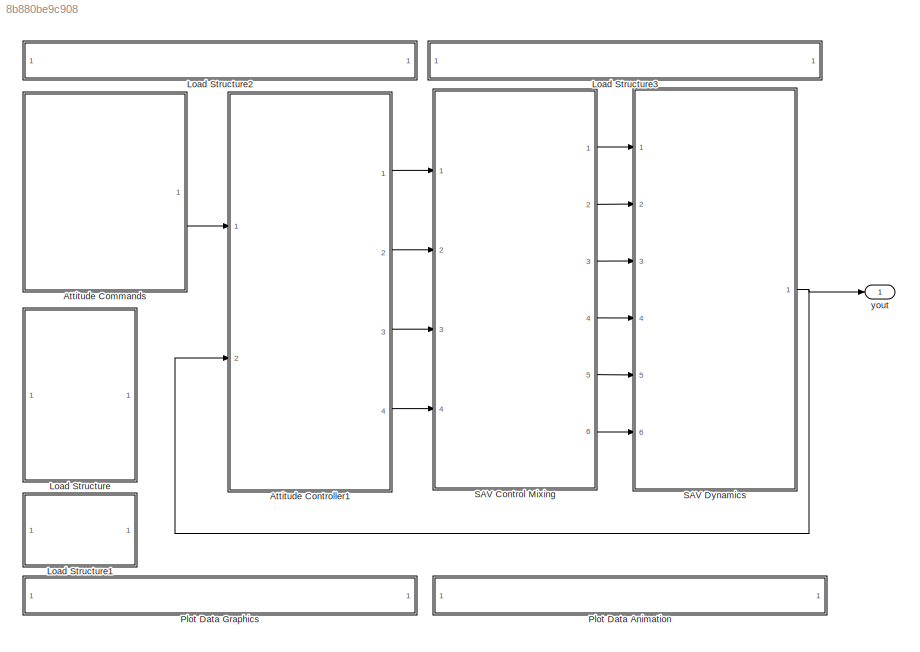
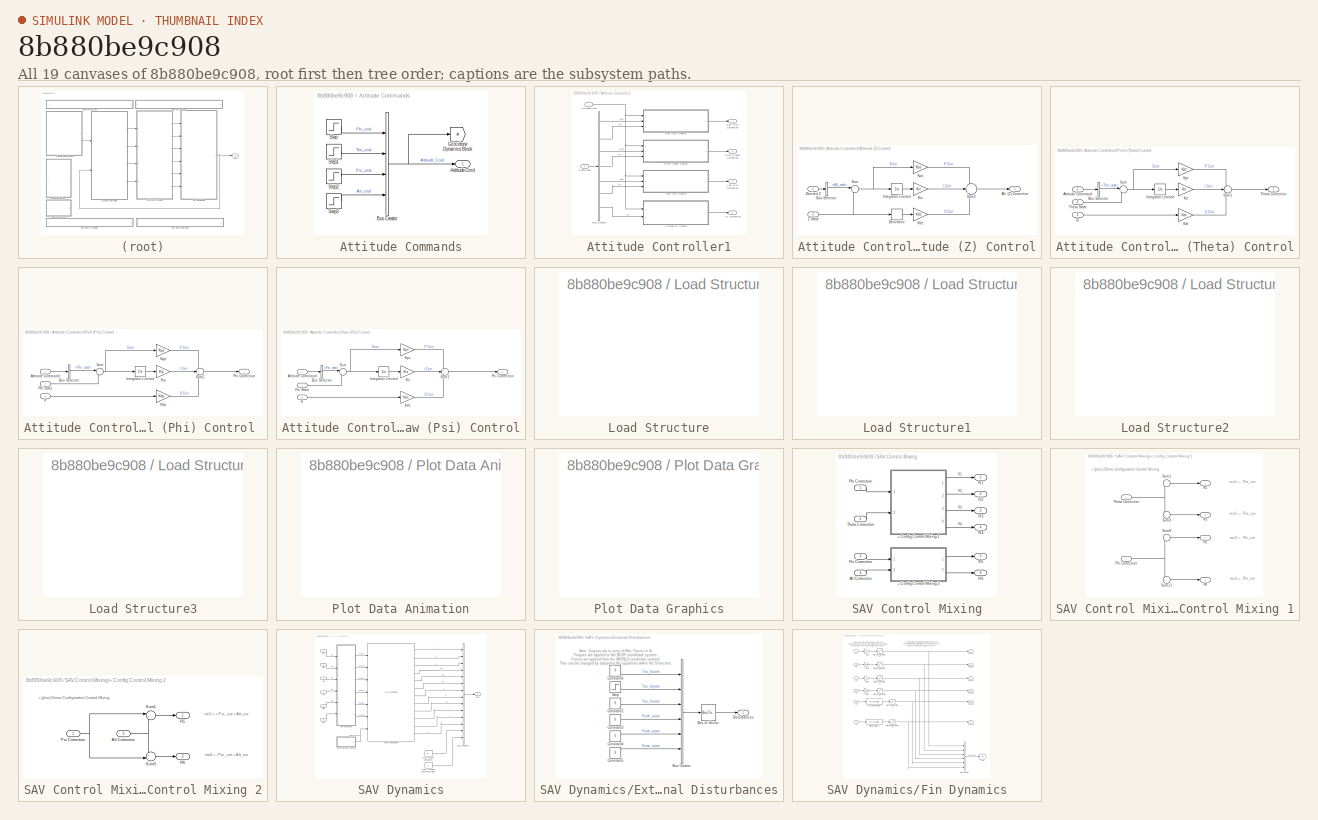
[diagram: thumbnail index - all 19 canvases of the model, root first then tree order]
MODEL slx_8b880be9c908
KIND model
WORKSPACE source: MAT-file member
WORKSPACE MCOS: class17 (value not decoded)
BLOCK [SubSystem] Attitude Commands
  Ports = [0, 1]
  RequestExecContextInheritance = off
BLOCK [Outport] Attitude Commands/Attittude Cmd
  IconDisplay = Port number
BLOCK [BusCreator] Attitude Commands/Bus Creator
  DisplayOption = bar
  Ports = [4, 1]
BLOCK [Goto] Attitude Commands/Go to drone Dynamics Block
  TagVisibility = global
BLOCK [Step] Attitude Commands/Step
  After = 0
  SampleTime = 0
BLOCK [Step] Attitude Commands/Step1
  After = 20*pi/180
  SampleTime = 0
BLOCK [Step] Attitude Commands/Step2
  After = 0
  SampleTime = 0
BLOCK [Step] Attitude Commands/Step3
  After = 10
  Before = 10
  SampleTime = 0
  Time = 0
BLOCK [SubSystem] Attitude Controller1
  Ports = [2, 4]
  RequestExecContextInheritance = off
BLOCK [Outport] Attitude Controller1/Alt Correction
  IconDisplay = Port number
  Port = 4
BLOCK [SubSystem] Attitude Controller1/Altitude (Z) Control
  Ports = [2, 1]
  RequestExecContextInheritance = off
BLOCK [Outport] Attitude Controller1/Altitude (Z) Control/Alt. (Z) Correction
  IconDisplay = Port number
BLOCK [BusSelector] Attitude Controller1/Altitude (Z) Control/Bus Selector
  OutputSignals = Alt_cmd
  Ports = [1, 1]
BLOCK [Derivative] Attitude Controller1/Altitude (Z) Control/Derivative
BLOCK [Inport] Attitude Controller1/Altitude (Z) Control/Desired Z
  IconDisplay = Port number
BLOCK [Integrator] Attitude Controller1/Altitude (Z) Control/Integrator Limited
  LowerSaturationLimit = LSat
  Ports = [1, 1]
  UpperSaturationLimit = USat
BLOCK [Gain] Attitude Controller1/Altitude (Z) Control/Kdz
  Gain = Kdz
  OutDataTypeStr = Inherit: Inherit via internal rule
  ParamDataTypeStr = Inherit: Inherit via internal rule
  SaturateOnIntegerOverflow = off
BLOCK [Gain] Attitude Controller1/Altitude (Z) Control/Kiz
  Gain = Kiz
  OutDataTypeStr = Inherit: Inherit via internal rule
  ParamDataTypeStr = Inherit: Inherit via internal rule
  SaturateOnIntegerOverflow = off
BLOCK [Gain] Attitude Controller1/Altitude (Z) Control/Kpz
  Gain = Kpz
  OutDataTypeStr = Inherit: Inherit via internal rule
  ParamDataTypeStr = Inherit: Inherit via internal rule
  SaturateOnIntegerOverflow = off
BLOCK [Sum] Attitude Controller1/Altitude (Z) Control/Sum
  IconShape = round
  InputSameDT = off
  Inputs = |+-
  OutDataTypeStr = Inherit: Inherit via internal rule
  Ports = [2, 1]
  SaturateOnIntegerOverflow = off
BLOCK [Sum] Attitude Controller1/Altitude (Z) Control/Sum2
  IconShape = round
  InputSameDT = off
  Inputs = ++-
  OutDataTypeStr = Inherit: Inherit via internal rule
  Ports = [3, 1]
  SaturateOnIntegerOverflow = off
BLOCK [Inport] Attitude Controller1/Altitude (Z) Control/Z State
  IconDisplay = Port number
  Port = 2
BLOCK [Inport] Attitude Controller1/Attitude Cmd
  IconDisplay = Port number
BLOCK [BusSelector] Attitude Controller1/Bus Selector
  OutputSignals = Phi,P,The,Q,Psi,R,Z
  Ports = [1, 7]
BLOCK [SubSystem] Attitude Controller1/Pitch (Theta) Control
  Ports = [3, 1]
  RequestExecContextInheritance = off
BLOCK [Inport] Attitude Controller1/Pitch (Theta) Control/Attitude Command
  IconDisplay = Port number
BLOCK [BusSelector] Attitude Controller1/Pitch (Theta) Control/Bus Selector
  OutputSignals = The_cmd
  Ports = [1, 1]
BLOCK [Integrator] Attitude Controller1/Pitch (Theta) Control/Integrator Limited
  LowerSaturationLimit = LSat
  Ports = [1, 1]
  UpperSaturationLimit = USat
BLOCK [Gain] Attitude Controller1/Pitch (Theta) Control/Kdt
  Gain = Kdt
  OutDataTypeStr = Inherit: Inherit via internal rule
  ParamDataTypeStr = Inherit: Inherit via internal rule
  SaturateOnIntegerOverflow = off
BLOCK [Gain] Attitude Controller1/Pitch (Theta) Control/Kit
  Gain = Kit
  OutDataTypeStr = Inherit: Inherit via internal rule
  ParamDataTypeStr = Inherit: Inherit via internal rule
  SaturateOnIntegerOverflow = off
BLOCK [Gain] Attitude Controller1/Pitch (Theta) Control/Kpt
  Gain = Kpt
  OutDataTypeStr = Inherit: Inherit via internal rule
  ParamDataTypeStr = Inherit: Inherit via internal rule
  SaturateOnIntegerOverflow = off
BLOCK [Inport] Attitude Controller1/Pitch (Theta) Control/Q
  IconDisplay = Port number
  Port = 3
BLOCK [Sum] Attitude Controller1/Pitch (Theta) Control/Sum
  IconShape = round
  InputSameDT = off
  Inputs = |+-
  OutDataTypeStr = Inherit: Inherit via internal rule
  Ports = [2, 1]
  SaturateOnIntegerOverflow = off
BLOCK [Sum] Attitude Controller1/Pitch (Theta) Control/Sum1
  IconShape = round
  InputSameDT = off
  Inputs = ++-
  OutDataTypeStr = Inherit: Inherit via internal rule
  Ports = [3, 1]
  SaturateOnIntegerOverflow = off
BLOCK [Outport] Attitude Controller1/Pitch (Theta) Control/Theta Correction
  IconDisplay = Port number
BLOCK [Inport] Attitude Controller1/Pitch (Theta) Control/Theta State
  IconDisplay = Port number
  Port = 2
BLOCK [Outport] Attitude Controller1/Pitch (Theta) Correction
  IconDisplay = Port number
  Port = 2
BLOCK [SubSystem] Attitude Controller1/Roll (Phi) Control 
  Ports = [3, 1]
  RequestExecContextInheritance = off
BLOCK [Inport] Attitude Controller1/Roll (Phi) Control /Attitude Command 
  IconDisplay = Port number
BLOCK [BusSelector] Attitude Controller1/Roll (Phi) Control /Bus Selector
  OutputSignals = Phi_cmd
  Ports = [1, 1]
BLOCK [Integrator] Attitude Controller1/Roll (Phi) Control /Integrator Limited
  LowerSaturationLimit = LSat
  Ports = [1, 1]
  UpperSaturationLimit = USat
BLOCK [Gain] Attitude Controller1/Roll (Phi) Control /Kdp
  Gain = Kdp
  OutDataTypeStr = Inherit: Inherit via internal rule
  ParamDataTypeStr = Inherit: Inherit via internal rule
  SaturateOnIntegerOverflow = off
BLOCK [Gain] Attitude Controller1/Roll (Phi) Control /Kip
  Gain = Kip
  OutDataTypeStr = Inherit: Inherit via internal rule
  ParamDataTypeStr = Inherit: Inherit via internal rule
  SaturateOnIntegerOverflow = off
BLOCK [Gain] Attitude Controller1/Roll (Phi) Control /Kpp
  Gain = Kpp
  OutDataTypeStr = Inherit: Inherit via internal rule
  ParamDataTypeStr = Inherit: Inherit via internal rule
  SaturateOnIntegerOverflow = off
BLOCK [Inport] Attitude Controller1/Roll (Phi) Control /P
  IconDisplay = Port number
  Port = 3
BLOCK [Outport] Attitude Controller1/Roll (Phi) Control /Phi Correction
  IconDisplay = Port number
BLOCK [Inport] Attitude Controller1/Roll (Phi) Control /Phi State
  IconDisplay = Port number
  Port = 2
BLOCK [Sum] Attitude Controller1/Roll (Phi) Control /Sum
  IconShape = round
  InputSameDT = off
  Inputs = |+-
  OutDataTypeStr = Inherit: Inherit via internal rule
  Ports = [2, 1]
  SaturateOnIntegerOverflow = off
BLOCK [Sum] Attitude Controller1/Roll (Phi) Control /Sum1
  IconShape = round
  InputSameDT = off
  Inputs = ++-
  OutDataTypeStr = Inherit: Inherit via internal rule
  Ports = [3, 1]
  SaturateOnIntegerOverflow = off
BLOCK [Outport] Attitude Controller1/Roll (Phi) Correction
  IconDisplay = Port number
BLOCK [Inport] Attitude Controller1/State Input
  IconDisplay = Port number
  Port = 2
BLOCK [SubSystem] Attitude Controller1/Yaw (Psi) Control
  Ports = [3, 1]
  RequestExecContextInheritance = off
BLOCK [Inport] Attitude Controller1/Yaw (Psi) Control/Attitude Command
  IconDisplay = Port number
BLOCK [BusSelector] Attitude Controller1/Yaw (Psi) Control/Bus Selector
  OutputSignals = Psi_cmd
  Ports = [1, 1]
BLOCK [Integrator] Attitude Controller1/Yaw (Psi) Control/Integrator Limited
  LowerSaturationLimit = LSat
  Ports = [1, 1]
  UpperSaturationLimit = USat
BLOCK [Gain] Attitude Controller1/Yaw (Psi) Control/Kds
  Gain = Kds
  OutDataTypeStr = Inherit: Inherit via internal rule
  ParamDataTypeStr = Inherit: Inherit via internal rule
  SaturateOnIntegerOverflow = off
BLOCK [Gain] Attitude Controller1/Yaw (Psi) Control/Kit
  Gain = Kis
  OutDataTypeStr = Inherit: Inherit via internal rule
  ParamDataTypeStr = Inherit: Inherit via internal rule
  SaturateOnIntegerOverflow = off
BLOCK [Gain] Attitude Controller1/Yaw (Psi) Control/Kps
  Gain = Kps
  OutDataTypeStr = Inherit: Inherit via internal rule
  ParamDataTypeStr = Inherit: Inherit via internal rule
  SaturateOnIntegerOverflow = off
BLOCK [Outport] Attitude Controller1/Yaw (Psi) Control/Psi Correction
  IconDisplay = Port number
BLOCK [Inport] Attitude Controller1/Yaw (Psi) Control/Psi State
  IconDisplay = Port number
  Port = 2
BLOCK [Inport] Attitude Controller1/Yaw (Psi) Control/R
  IconDisplay = Port number
  Port = 3
BLOCK [Sum] Attitude Controller1/Yaw (Psi) Control/Sum
  IconShape = round
  InputSameDT = off
  Inputs = |+-
  OutDataTypeStr = Inherit: Inherit via internal rule
  Ports = [2, 1]
  SaturateOnIntegerOverflow = off
BLOCK [Sum] Attitude Controller1/Yaw (Psi) Control/Sum1
  IconShape = round
  InputSameDT = off
  Inputs = ++-
  OutDataTypeStr = Inherit: Inherit via internal rule
  Ports = [3, 1]
  SaturateOnIntegerOverflow = off
BLOCK [Outport] Attitude Controller1/Yaw (Psi) Correction
  IconDisplay = Port number
  Port = 3
BLOCK [SubSystem] Load Structure
  OpenFcn = uiopen('load')                                  \nif (exist('IC')==1 && exist('quadModel')==1)    \nset_param(bdroot, 'SimulationCommand', 'update')\nend
  Ports = []
  RequestExecContextInheritance = off
  ShowPortLabels = FromPortBlockName
BLOCK [SubSystem] Load Structure1
  OpenFcn = if (exist('IC')==1 && exist('quadModel')==1 && exist('yout') && exist('tout'))\nsaveSimResults()                                                              \nelse                                                                          \nmsgbox('No Data To Save!')                                                    \nend
  Ports = []
  RequestExecContextInheritance = off
  ShowPortLabels = FromPortBlockName
BLOCK [SubSystem] Load Structure2
  OpenFcn = if exist('GUI_Modeling') == 2,                                \nrun('GUI_Modeling')                                           \n                                                              \nelse                                                          \n                                                              \nmsgbox('The desired GUI must be first added to MATLABs path.')\n                      ...<+44ch>
  Ports = []
  RequestExecContextInheritance = off
  ShowPortLabels = none
BLOCK [SubSystem] Load Structure3
  OpenFcn = if exist('GUI_IC') == 2,                                      \nrun('GUI_IC')                                                 \n                                                              \nelse                                                          \n                                                              \nmsgbox('The desired GUI must be first added to MATLABs path.')\n                      ...<+44ch>
  Ports = []
  RequestExecContextInheritance = off
  ShowPortLabels = none
BLOCK [SubSystem] Plot Data Animation
  OpenFcn = if exist('droneAnim4') == 2,                                                                                                                 \n    if exist('yout')                                                                                                                        \n	run('droneAnim4');                                                                                                  ...<+592ch>
  Ports = []
  RequestExecContextInheritance = off
  ShowPortLabels = FromPortBlockName
BLOCK [SubSystem] Plot Data Graphics
  OpenFcn = if exist('yout')                                            \nyout = evalin('base', 'yout');                              \ntout = evalin('base', 'tout');                              \ndronePlots(yout, tout)                                       \nelse                                                        \nmsgbox('Simulation must be run before data can be plotted.')\nend
  Ports = []
  RequestExecContextInheritance = off
  ShowPortLabels = FromPortBlockName
BLOCK [SubSystem] SAV Control Mixing
  Ports = [4, 6]
  RequestExecContextInheritance = off
BLOCK [SubSystem] SAV Control Mixing/+ Config Control Mixing 1
  Ports = [2, 4]
  RequestExecContextInheritance = off
BLOCK [Inport] SAV Control Mixing/+ Config Control Mixing 1/Phi Correction
  IconDisplay = Port number
BLOCK [Outport] SAV Control Mixing/+ Config Control Mixing 1/R1
  IconDisplay = Port number
BLOCK [Outport] SAV Control Mixing/+ Config Control Mixing 1/R2
  IconDisplay = Port number
  Port = 2
BLOCK [Outport] SAV Control Mixing/+ Config Control Mixing 1/R3
  IconDisplay = Port number
  Port = 3
BLOCK [Outport] SAV Control Mixing/+ Config Control Mixing 1/R4
  IconDisplay = Port number
  Port = 4
BLOCK [Sum] SAV Control Mixing/+ Config Control Mixing 1/Sum1
  IconShape = round
  InputSameDT = off
  Inputs = |-
  OutDataTypeStr = Inherit: Inherit via internal rule
  Ports = [1, 1]
  SaturateOnIntegerOverflow = off
BLOCK [Sum] SAV Control Mixing/+ Config Control Mixing 1/Sum11
  IconShape = round
  InputSameDT = off
  Inputs = -|
  OutDataTypeStr = Inherit: Inherit via internal rule
  Ports = [1, 1]
  SaturateOnIntegerOverflow = off
BLOCK [Sum] SAV Control Mixing/+ Config Control Mixing 1/Sum3
  IconShape = round
  InputSameDT = off
  Inputs = -|
  OutDataTypeStr = Inherit: Inherit via internal rule
  Ports = [1, 1]
  SaturateOnIntegerOverflow = off
BLOCK [Sum] SAV Control Mixing/+ Config Control Mixing 1/Sum8
  IconShape = round
  InputSameDT = off
  Inputs = |-
  OutDataTypeStr = Inherit: Inherit via internal rule
  Ports = [1, 1]
  SaturateOnIntegerOverflow = off
BLOCK [Inport] SAV Control Mixing/+ Config Control Mixing 1/Theta Correction
  IconDisplay = Port number
  Port = 2
BLOCK [SubSystem] SAV Control Mixing/+ Config Control Mixing 2
  Ports = [2, 2]
  RequestExecContextInheritance = off
BLOCK [Inport] SAV Control Mixing/+ Config Control Mixing 2/Alt Correction
  IconDisplay = Port number
  Port = 2
BLOCK [Inport] SAV Control Mixing/+ Config Control Mixing 2/Psi Correction
  IconDisplay = Port number
BLOCK [Outport] SAV Control Mixing/+ Config Control Mixing 2/R5
  IconDisplay = Port number
BLOCK [Outport] SAV Control Mixing/+ Config Control Mixing 2/R6
  IconDisplay = Port number
  Port = 2
BLOCK [Sum] SAV Control Mixing/+ Config Control Mixing 2/Sum1
  IconShape = round
  InputSameDT = off
  Inputs = |++
  OutDataTypeStr = Inherit: Inherit via internal rule
  Ports = [2, 1]
  SaturateOnIntegerOverflow = off
BLOCK [Sum] SAV Control Mixing/+ Config Control Mixing 2/Sum3
  IconShape = round
  InputSameDT = off
  Inputs = +-|
  OutDataTypeStr = Inherit: Inherit via internal rule
  Ports = [2, 1]
  SaturateOnIntegerOverflow = off
BLOCK [Inport] SAV Control Mixing/Alt Correction
  IconDisplay = Port number
  Port = 4
BLOCK [Inport] SAV Control Mixing/Phi Correction
  IconDisplay = Port number
BLOCK [Inport] SAV Control Mixing/Psi Correction
  IconDisplay = Port number
  Port = 3
BLOCK [Outport] SAV Control Mixing/R1
  IconDisplay = Port number
BLOCK [Outport] SAV Control Mixing/R2
  IconDisplay = Port number
  Port = 2
BLOCK [Outport] SAV Control Mixing/R3
  IconDisplay = Port number
  Port = 3
BLOCK [Outport] SAV Control Mixing/R4
  IconDisplay = Port number
  Port = 4
BLOCK [Outport] SAV Control Mixing/R5
  IconDisplay = Port number
  Port = 5
BLOCK [Outport] SAV Control Mixing/R6
  IconDisplay = Port number
  Port = 6
BLOCK [Inport] SAV Control Mixing/Theta Correction
  IconDisplay = Port number
  Port = 2
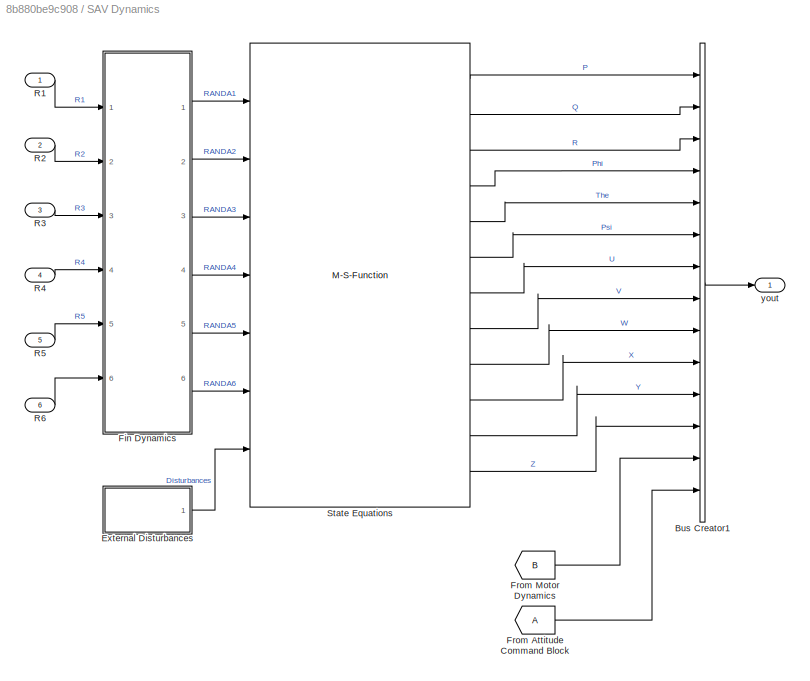
BLOCK [SubSystem] SAV Dynamics
  Ports = [6, 1]
  RequestExecContextInheritance = off
BLOCK [BusCreator] SAV Dynamics/Bus Creator1
  DisplayOption = bar
  Inputs = 'P','Q','R','Phi','The','Psi','U','V','W','X','Y','Z','mc and RPM','Attitude_Cmd'
  Ports = [14, 1]
BLOCK [SubSystem] SAV Dynamics/External Disturbances
  Ports = [0, 1]
  RequestExecContextInheritance = off
BLOCK [BusCreator] SAV Dynamics/External Disturbances/Bus Creator
  DisplayOption = bar
  Inputs = 6
  Ports = [6, 1]
BLOCK [BusToVector] SAV Dynamics/External Disturbances/Bus to Vector
BLOCK [Constant] SAV Dynamics/External Disturbances/Constant2
  Value = 0
BLOCK [Constant] SAV Dynamics/External Disturbances/Constant3
  Value = 0
BLOCK [Constant] SAV Dynamics/External Disturbances/Constant4
  Value = 0
BLOCK [Constant] SAV Dynamics/External Disturbances/Constant5
  Value = 0
BLOCK [Constant] SAV Dynamics/External Disturbances/Constant6
  Value = 0
BLOCK [Outport] SAV Dynamics/External Disturbances/Disturbances 
  IconDisplay = Port number
BLOCK [Step] SAV Dynamics/External Disturbances/Step
  After = 0
  SampleTime = 0
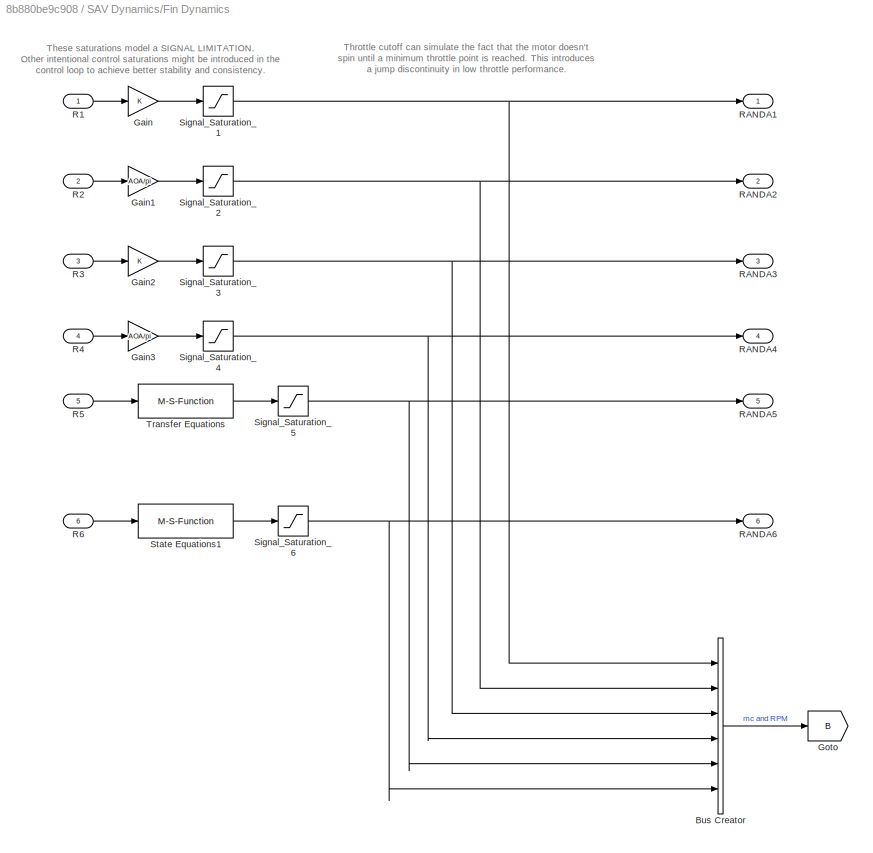
BLOCK [SubSystem] SAV Dynamics/Fin Dynamics
  Ports = [6, 6]
  RequestExecContextInheritance = off
BLOCK [BusCreator] SAV Dynamics/Fin Dynamics/Bus Creator
  DisplayOption = bar
  Inputs = 6
  Ports = [6, 1]
BLOCK [Gain] SAV Dynamics/Fin Dynamics/Gain
  OutDataTypeStr = Inherit: Inherit via internal rule
  ParamDataTypeStr = Inherit: Inherit via internal rule
  SaturateOnIntegerOverflow = off
BLOCK [Gain] SAV Dynamics/Fin Dynamics/Gain1
  Gain = AOA/pi
  OutDataTypeStr = Inherit: Inherit via internal rule
  ParamDataTypeStr = Inherit: Inherit via internal rule
  SaturateOnIntegerOverflow = off
BLOCK [Gain] SAV Dynamics/Fin Dynamics/Gain2
  OutDataTypeStr = Inherit: Inherit via internal rule
  ParamDataTypeStr = Inherit: Inherit via internal rule
  SaturateOnIntegerOverflow = off
BLOCK [Gain] SAV Dynamics/Fin Dynamics/Gain3
  Gain = AOA/pi
  OutDataTypeStr = Inherit: Inherit via internal rule
  ParamDataTypeStr = Inherit: Inherit via internal rule
  SaturateOnIntegerOverflow = off
BLOCK [Goto] SAV Dynamics/Fin Dynamics/Goto
  GotoTag = B
  TagVisibility = global
BLOCK [Inport] SAV Dynamics/Fin Dynamics/R1
  IconDisplay = Port number
BLOCK [Inport] SAV Dynamics/Fin Dynamics/R2
  IconDisplay = Port number
  Port = 2
BLOCK [Inport] SAV Dynamics/Fin Dynamics/R3
  IconDisplay = Port number
  Port = 3
BLOCK [Inport] SAV Dynamics/Fin Dynamics/R4
  IconDisplay = Port number
  Port = 4
BLOCK [Inport] SAV Dynamics/Fin Dynamics/R5
  IconDisplay = Port number
  Port = 5
BLOCK [Inport] SAV Dynamics/Fin Dynamics/R6
  IconDisplay = Port number
  Port = 6
BLOCK [Outport] SAV Dynamics/Fin Dynamics/RANDA1
  IconDisplay = Port number
BLOCK [Outport] SAV Dynamics/Fin Dynamics/RANDA2
  IconDisplay = Port number
  Port = 2
BLOCK [Outport] SAV Dynamics/Fin Dynamics/RANDA3
  IconDisplay = Port number
  Port = 3
BLOCK [Outport] SAV Dynamics/Fin Dynamics/RANDA4
  IconDisplay = Port number
  Port = 4
BLOCK [Outport] SAV Dynamics/Fin Dynamics/RANDA5
  IconDisplay = Port number
  Port = 5
BLOCK [Outport] SAV Dynamics/Fin Dynamics/RANDA6
  IconDisplay = Port number
  Port = 6
BLOCK [Saturate] SAV Dynamics/Fin Dynamics/Signal_Saturation_1
  InputPortMap = u0
  LowerLimit = -AOA
  Ports = [1, 1]
  UpperLimit = AOA
BLOCK [Saturate] SAV Dynamics/Fin Dynamics/Signal_Saturation_2
  InputPortMap = u0
  LowerLimit = -AOA
  Ports = [1, 1]
  UpperLimit = AOA
BLOCK [Saturate] SAV Dynamics/Fin Dynamics/Signal_Saturation_3
  InputPortMap = u0
  LowerLimit = -AOA
  Ports = [1, 1]
  UpperLimit = AOA
BLOCK [Saturate] SAV Dynamics/Fin Dynamics/Signal_Saturation_4
  InputPortMap = u0
  LowerLimit = -AOA
  Ports = [1, 1]
  UpperLimit = AOA
BLOCK [Saturate] SAV Dynamics/Fin Dynamics/Signal_Saturation_5
  InputPortMap = u0
  LowerLimit = 50
  Ports = [1, 1]
  UpperLimit = 100
BLOCK [Saturate] SAV Dynamics/Fin Dynamics/Signal_Saturation_6
  InputPortMap = u0
  LowerLimit = 50
  Ports = [1, 1]
  UpperLimit = 100
BLOCK [M-S-Function] SAV Dynamics/Fin Dynamics/State Equations1
  FunctionName = Hovering_RPM
  Parameters = droneModel
  Ports = [1, 1]
BLOCK [M-S-Function] SAV Dynamics/Fin Dynamics/Transfer Equations
  FunctionName = Hovering_RPM
  Parameters = droneModel
  Ports = [1, 1]
BLOCK [From] SAV Dynamics/From Attitude Command Block
  TagVisibility = global
BLOCK [From] SAV Dynamics/From Motor Dynamics
  GotoTag = B
  TagVisibility = global
BLOCK [Inport] SAV Dynamics/R1
  IconDisplay = Port number
BLOCK [Inport] SAV Dynamics/R2
  IconDisplay = Port number
  Port = 2
BLOCK [Inport] SAV Dynamics/R3
  IconDisplay = Port number
  Port = 3
BLOCK [Inport] SAV Dynamics/R4
  IconDisplay = Port number
  Port = 4
BLOCK [Inport] SAV Dynamics/R5
  IconDisplay = Port number
  Port = 5
BLOCK [Inport] SAV Dynamics/R6
  IconDisplay = Port number
  Port = 6
BLOCK [M-S-Function] SAV Dynamics/State Equations
  FunctionName = droneDynamicsSFunction
  Parameters = droneModel, IC
  Ports = [7, 12]
BLOCK [Outport] SAV Dynamics/yout
  IconDisplay = Port number
BLOCK [Outport] yout
  IconDisplay = Port number
ANNOTATION SAV Control Mixing/+ Config Control Mixing 1: + (plus) Drone Configuration Control Mixing
ANNOTATION SAV Control Mixing/+ Config Control Mixing 1: mc1 = - The_cor
ANNOTATION SAV Control Mixing/+ Config Control Mixing 1: mc2 = - Phi_cor
ANNOTATION SAV Control Mixing/+ Config Control Mixing 1: mc3 = - The_cor
ANNOTATION SAV Control Mixing/+ Config Control Mixing 1: mc4 = - Phi_cor
ANNOTATION SAV Control Mixing/+ Config Control Mixing 2: + (plus) Drone Configuration Control Mixing
ANNOTATION SAV Control Mixing/+ Config Control Mixing 2: mc5 = + Psi _cor + Alt_cor
ANNOTATION SAV Control Mixing/+ Config Control Mixing 2: mc6 = - Psi _cor + Alt_cor
ANNOTATION SAV Dynamics/External Disturbances: Note: Torques are in units of N*m, Forces in N Torques are applied to the BODY coordinate system. Forces are applied from the WORLD coordinate system! This can be changed by adjusting the equations within the S-function.
ANNOTATION SAV Dynamics/Fin Dynamics: These saturations model a SIGNAL LIMITATION. Other intentional control saturations might be introduced in the control loop to achieve better stability and consistency.
ANNOTATION SAV Dynamics/Fin Dynamics: Throttle cutoff can simulate the fact that the motor doesn't spin until a minimum throttle point is reached. This introduces a jump discontinuity in low throttle performance.
NET Attitude Commands/Bus Creator:1 -> Attitude Commands/Attittude Cmd:1, Attitude Commands/Go to drone Dynamics Block:1
LINE Attitude Commands/Step1:1 -> Attitude Commands/Bus Creator:2
LINE Attitude Commands/Step2:1 -> Attitude Commands/Bus Creator:3
LINE Attitude Commands/Step3:1 -> Attitude Commands/Bus Creator:4
LINE Attitude Commands/Step:1 -> Attitude Commands/Bus Creator:1
LINE Attitude Commands:1 -> Attitude Controller1:1
LINE Attitude Controller1/Altitude (Z) Control/Bus Selector:1 -> Attitude Controller1/Altitude (Z) Control/Sum:1
LINE Attitude Controller1/Altitude (Z) Control/Derivative:1 -> Attitude Controller1/Altitude (Z) Control/Kdz:1
LINE Attitude Controller1/Altitude (Z) Control/Desired Z:1 -> Attitude Controller1/Altitude (Z) Control/Bus Selector:1
LINE Attitude Controller1/Altitude (Z) Control/Integrator Limited:1 -> Attitude Controller1/Altitude (Z) Control/Kiz:1
LINE Attitude Controller1/Altitude (Z) Control/Kdz:1 -> Attitude Controller1/Altitude (Z) Control/Sum2:3
LINE Attitude Controller1/Altitude (Z) Control/Kiz:1 -> Attitude Controller1/Altitude (Z) Control/Sum2:2
LINE Attitude Controller1/Altitude (Z) Control/Kpz:1 -> Attitude Controller1/Altitude (Z) Control/Sum2:1
LINE Attitude Controller1/Altitude (Z) Control/Sum2:1 -> Attitude Controller1/Altitude (Z) Control/Alt. (Z) Correction:1
NET Attitude Controller1/Altitude (Z) Control/Sum:1 -> Attitude Controller1/Altitude (Z) Control/Integrator Limited:1, Attitude Controller1/Altitude (Z) Control/Kpz:1
NET Attitude Controller1/Altitude (Z) Control/Z State:1 -> Attitude Controller1/Altitude (Z) Control/Derivative:1, Attitude Controller1/Altitude (Z) Control/Sum:2
LINE Attitude Controller1/Altitude (Z) Control:1 -> Attitude Controller1/Alt Correction:1
NET Attitude Controller1/Attitude Cmd:1 -> Attitude Controller1/Altitude (Z) Control:1, Attitude Controller1/Pitch (Theta) Control:1, Attitude Controller1/Roll (Phi) Control :1, Attitude Controller1/Yaw (Psi) Control:1
LINE Attitude Controller1/Bus Selector:1 -> Attitude Controller1/Roll (Phi) Control :2
LINE Attitude Controller1/Bus Selector:2 -> Attitude Controller1/Roll (Phi) Control :3
LINE Attitude Controller1/Bus Selector:3 -> Attitude Controller1/Pitch (Theta) Control:2
LINE Attitude Controller1/Bus Selector:4 -> Attitude Controller1/Pitch (Theta) Control:3
LINE Attitude Controller1/Bus Selector:5 -> Attitude Controller1/Yaw (Psi) Control:2
LINE Attitude Controller1/Bus Selector:6 -> Attitude Controller1/Yaw (Psi) Control:3
LINE Attitude Controller1/Bus Selector:7 -> Attitude Controller1/Altitude (Z) Control:2
LINE Attitude Controller1/Pitch (Theta) Control/Attitude Command:1 -> Attitude Controller1/Pitch (Theta) Control/Bus Selector:1
LINE Attitude Controller1/Pitch (Theta) Control/Bus Selector:1 -> Attitude Controller1/Pitch (Theta) Control/Sum:1
LINE Attitude Controller1/Pitch (Theta) Control/Integrator Limited:1 -> Attitude Controller1/Pitch (Theta) Control/Kit:1
LINE Attitude Controller1/Pitch (Theta) Control/Kdt:1 -> Attitude Controller1/Pitch (Theta) Control/Sum1:3
LINE Attitude Controller1/Pitch (Theta) Control/Kit:1 -> Attitude Controller1/Pitch (Theta) Control/Sum1:2
LINE Attitude Controller1/Pitch (Theta) Control/Kpt:1 -> Attitude Controller1/Pitch (Theta) Control/Sum1:1
LINE Attitude Controller1/Pitch (Theta) Control/Q:1 -> Attitude Controller1/Pitch (Theta) Control/Kdt:1
LINE Attitude Controller1/Pitch (Theta) Control/Sum1:1 -> Attitude Controller1/Pitch (Theta) Control/Theta Correction:1
NET Attitude Controller1/Pitch (Theta) Control/Sum:1 -> Attitude Controller1/Pitch (Theta) Control/Integrator Limited:1, Attitude Controller1/Pitch (Theta) Control/Kpt:1
LINE Attitude Controller1/Pitch (Theta) Control/Theta State:1 -> Attitude Controller1/Pitch (Theta) Control/Sum:2
LINE Attitude Controller1/Pitch (Theta) Control:1 -> Attitude Controller1/Pitch (Theta) Correction:1
LINE Attitude Controller1/Roll (Phi) Control /Attitude Command :1 -> Attitude Controller1/Roll (Phi) Control /Bus Selector:1
LINE Attitude Controller1/Roll (Phi) Control /Bus Selector:1 -> Attitude Controller1/Roll (Phi) Control /Sum:1
LINE Attitude Controller1/Roll (Phi) Control /Integrator Limited:1 -> Attitude Controller1/Roll (Phi) Control /Kip:1
LINE Attitude Controller1/Roll (Phi) Control /Kdp:1 -> Attitude Controller1/Roll (Phi) Control /Sum1:3
LINE Attitude Controller1/Roll (Phi) Control /Kip:1 -> Attitude Controller1/Roll (Phi) Control /Sum1:2
LINE Attitude Controller1/Roll (Phi) Control /Kpp:1 -> Attitude Controller1/Roll (Phi) Control /Sum1:1
LINE Attitude Controller1/Roll (Phi) Control /P:1 -> Attitude Controller1/Roll (Phi) Control /Kdp:1
LINE Attitude Controller1/Roll (Phi) Control /Phi State:1 -> Attitude Controller1/Roll (Phi) Control /Sum:2
LINE Attitude Controller1/Roll (Phi) Control /Sum1:1 -> Attitude Controller1/Roll (Phi) Control /Phi Correction:1
NET Attitude Controller1/Roll (Phi) Control /Sum:1 -> Attitude Controller1/Roll (Phi) Control /Integrator Limited:1, Attitude Controller1/Roll (Phi) Control /Kpp:1
LINE Attitude Controller1/Roll (Phi) Control :1 -> Attitude Controller1/Roll (Phi) Correction:1
LINE Attitude Controller1/State Input:1 -> Attitude Controller1/Bus Selector:1
LINE Attitude Controller1/Yaw (Psi) Control/Attitude Command:1 -> Attitude Controller1/Yaw (Psi) Control/Bus Selector:1
LINE Attitude Controller1/Yaw (Psi) Control/Bus Selector:1 -> Attitude Controller1/Yaw (Psi) Control/Sum:1
LINE Attitude Controller1/Yaw (Psi) Control/Integrator Limited:1 -> Attitude Controller1/Yaw (Psi) Control/Kit:1
LINE Attitude Controller1/Yaw (Psi) Control/Kds:1 -> Attitude Controller1/Yaw (Psi) Control/Sum1:3
LINE Attitude Controller1/Yaw (Psi) Control/Kit:1 -> Attitude Controller1/Yaw (Psi) Control/Sum1:2
LINE Attitude Controller1/Yaw (Psi) Control/Kps:1 -> Attitude Controller1/Yaw (Psi) Control/Sum1:1
LINE Attitude Controller1/Yaw (Psi) Control/Psi State:1 -> Attitude Controller1/Yaw (Psi) Control/Sum:2
LINE Attitude Controller1/Yaw (Psi) Control/R:1 -> Attitude Controller1/Yaw (Psi) Control/Kds:1
LINE Attitude Controller1/Yaw (Psi) Control/Sum1:1 -> Attitude Controller1/Yaw (Psi) Control/Psi Correction:1
NET Attitude Controller1/Yaw (Psi) Control/Sum:1 -> Attitude Controller1/Yaw (Psi) Control/Integrator Limited:1, Attitude Controller1/Yaw (Psi) Control/Kps:1
LINE Attitude Controller1/Yaw (Psi) Control:1 -> Attitude Controller1/Yaw (Psi) Correction:1
LINE Attitude Controller1:1 -> SAV Control Mixing:1
LINE Attitude Controller1:2 -> SAV Control Mixing:2
LINE Attitude Controller1:3 -> SAV Control Mixing:3
LINE Attitude Controller1:4 -> SAV Control Mixing:4
NET SAV Control Mixing/+ Config Control Mixing 1/Phi Correction:1 -> SAV Control Mixing/+ Config Control Mixing 1/Sum11:1, SAV Control Mixing/+ Config Control Mixing 1/Sum8:1
LINE SAV Control Mixing/+ Config Control Mixing 1/Sum11:1 -> SAV Control Mixing/+ Config Control Mixing 1/R4:1
LINE SAV Control Mixing/+ Config Control Mixing 1/Sum1:1 -> SAV Control Mixing/+ Config Control Mixing 1/R1:1
LINE SAV Control Mixing/+ Config Control Mixing 1/Sum3:1 -> SAV Control Mixing/+ Config Control Mixing 1/R3:1
LINE SAV Control Mixing/+ Config Control Mixing 1/Sum8:1 -> SAV Control Mixing/+ Config Control Mixing 1/R2:1
NET SAV Control Mixing/+ Config Control Mixing 1/Theta Correction:1 -> SAV Control Mixing/+ Config Control Mixing 1/Sum1:1, SAV Control Mixing/+ Config Control Mixing 1/Sum3:1
LINE SAV Control Mixing/+ Config Control Mixing 1:1 -> SAV Control Mixing/R1:1
LINE SAV Control Mixing/+ Config Control Mixing 1:2 -> SAV Control Mixing/R2:1
LINE SAV Control Mixing/+ Config Control Mixing 1:3 -> SAV Control Mixing/R3:1
LINE SAV Control Mixing/+ Config Control Mixing 1:4 -> SAV Control Mixing/R4:1
NET SAV Control Mixing/+ Config Control Mixing 2/Alt Correction:1 -> SAV Control Mixing/+ Config Control Mixing 2/Sum1:2, SAV Control Mixing/+ Config Control Mixing 2/Sum3:1
NET SAV Control Mixing/+ Config Control Mixing 2/Psi Correction:1 -> SAV Control Mixing/+ Config Control Mixing 2/Sum1:1, SAV Control Mixing/+ Config Control Mixing 2/Sum3:2
LINE SAV Control Mixing/+ Config Control Mixing 2/Sum1:1 -> SAV Control Mixing/+ Config Control Mixing 2/R5:1
LINE SAV Control Mixing/+ Config Control Mixing 2/Sum3:1 -> SAV Control Mixing/+ Config Control Mixing 2/R6:1
LINE SAV Control Mixing/+ Config Control Mixing 2:1 -> SAV Control Mixing/R5:1
LINE SAV Control Mixing/+ Config Control Mixing 2:2 -> SAV Control Mixing/R6:1
LINE SAV Control Mixing/Alt Correction:1 -> SAV Control Mixing/+ Config Control Mixing 2:2
LINE SAV Control Mixing/Phi Correction:1 -> SAV Control Mixing/+ Config Control Mixing 1:1
LINE SAV Control Mixing/Psi Correction:1 -> SAV Control Mixing/+ Config Control Mixing 2:1
LINE SAV Control Mixing/Theta Correction:1 -> SAV Control Mixing/+ Config Control Mixing 1:2
LINE SAV Control Mixing:1 -> SAV Dynamics:1
LINE SAV Control Mixing:2 -> SAV Dynamics:2
LINE SAV Control Mixing:3 -> SAV Dynamics:3
LINE SAV Control Mixing:4 -> SAV Dynamics:4
LINE SAV Control Mixing:5 -> SAV Dynamics:5
LINE SAV Control Mixing:6 -> SAV Dynamics:6
LINE SAV Dynamics/Bus Creator1:1 -> SAV Dynamics/yout:1
LINE SAV Dynamics/External Disturbances/Bus Creator:1 -> SAV Dynamics/External Disturbances/Bus to Vector:1
LINE SAV Dynamics/External Disturbances/Bus to Vector:1 -> SAV Dynamics/External Disturbances/Disturbances :1
LINE SAV Dynamics/External Disturbances/Constant2:1 -> SAV Dynamics/External Disturbances/Bus Creator:3
LINE SAV Dynamics/External Disturbances/Constant3:1 -> SAV Dynamics/External Disturbances/Bus Creator:4
LINE SAV Dynamics/External Disturbances/Constant4:1 -> SAV Dynamics/External Disturbances/Bus Creator:5
LINE SAV Dynamics/External Disturbances/Constant5:1 -> SAV Dynamics/External Disturbances/Bus Creator:6
LINE SAV Dynamics/External Disturbances/Constant6:1 -> SAV Dynamics/External Disturbances/Bus Creator:1
LINE SAV Dynamics/External Disturbances/Step:1 -> SAV Dynamics/External Disturbances/Bus Creator:2
LINE SAV Dynamics/External Disturbances:1 -> SAV Dynamics/State Equations:7
LINE SAV Dynamics/Fin Dynamics/Bus Creator:1 -> SAV Dynamics/Fin Dynamics/Goto:1
LINE SAV Dynamics/Fin Dynamics/Gain1:1 -> SAV Dynamics/Fin Dynamics/Signal_Saturation_2:1
LINE SAV Dynamics/Fin Dynamics/Gain2:1 -> SAV Dynamics/Fin Dynamics/Signal_Saturation_3:1
LINE SAV Dynamics/Fin Dynamics/Gain3:1 -> SAV Dynamics/Fin Dynamics/Signal_Saturation_4:1
LINE SAV Dynamics/Fin Dynamics/Gain:1 -> SAV Dynamics/Fin Dynamics/Signal_Saturation_1:1
LINE SAV Dynamics/Fin Dynamics/R1:1 -> SAV Dynamics/Fin Dynamics/Gain:1
LINE SAV Dynamics/Fin Dynamics/R2:1 -> SAV Dynamics/Fin Dynamics/Gain1:1
LINE SAV Dynamics/Fin Dynamics/R3:1 -> SAV Dynamics/Fin Dynamics/Gain2:1
LINE SAV Dynamics/Fin Dynamics/R4:1 -> SAV Dynamics/Fin Dynamics/Gain3:1
LINE SAV Dynamics/Fin Dynamics/R5:1 -> SAV Dynamics/Fin Dynamics/Transfer Equations:1
LINE SAV Dynamics/Fin Dynamics/R6:1 -> SAV Dynamics/Fin Dynamics/State Equations1:1
NET SAV Dynamics/Fin Dynamics/Signal_Saturation_1:1 -> SAV Dynamics/Fin Dynamics/Bus Creator:1, SAV Dynamics/Fin Dynamics/RANDA1:1
NET SAV Dynamics/Fin Dynamics/Signal_Saturation_2:1 -> SAV Dynamics/Fin Dynamics/Bus Creator:2, SAV Dynamics/Fin Dynamics/RANDA2:1
NET SAV Dynamics/Fin Dynamics/Signal_Saturation_3:1 -> SAV Dynamics/Fin Dynamics/Bus Creator:3, SAV Dynamics/Fin Dynamics/RANDA3:1
NET SAV Dynamics/Fin Dynamics/Signal_Saturation_4:1 -> SAV Dynamics/Fin Dynamics/Bus Creator:4, SAV Dynamics/Fin Dynamics/RANDA4:1
NET SAV Dynamics/Fin Dynamics/Signal_Saturation_5:1 -> SAV Dynamics/Fin Dynamics/Bus Creator:5, SAV Dynamics/Fin Dynamics/RANDA5:1
NET SAV Dynamics/Fin Dynamics/Signal_Saturation_6:1 -> SAV Dynamics/Fin Dynamics/Bus Creator:6, SAV Dynamics/Fin Dynamics/RANDA6:1
LINE SAV Dynamics/Fin Dynamics/State Equations1:1 -> SAV Dynamics/Fin Dynamics/Signal_Saturation_6:1
LINE SAV Dynamics/Fin Dynamics/Transfer Equations:1 -> SAV Dynamics/Fin Dynamics/Signal_Saturation_5:1
LINE SAV Dynamics/Fin Dynamics:1 -> SAV Dynamics/State Equations:1
LINE SAV Dynamics/Fin Dynamics:2 -> SAV Dynamics/State Equations:2
LINE SAV Dynamics/Fin Dynamics:3 -> SAV Dynamics/State Equations:3
LINE SAV Dynamics/Fin Dynamics:4 -> SAV Dynamics/State Equations:4
LINE SAV Dynamics/Fin Dynamics:5 -> SAV Dynamics/State Equations:5
LINE SAV Dynamics/Fin Dynamics:6 -> SAV Dynamics/State Equations:6
LINE SAV Dynamics/From Attitude Command Block:1 -> SAV Dynamics/Bus Creator1:14
LINE SAV Dynamics/From Motor Dynamics:1 -> SAV Dynamics/Bus Creator1:13
LINE SAV Dynamics/R1:1 -> SAV Dynamics/Fin Dynamics:1
LINE SAV Dynamics/R2:1 -> SAV Dynamics/Fin Dynamics:2
LINE SAV Dynamics/R3:1 -> SAV Dynamics/Fin Dynamics:3
LINE SAV Dynamics/R4:1 -> SAV Dynamics/Fin Dynamics:4
LINE SAV Dynamics/R5:1 -> SAV Dynamics/Fin Dynamics:5
LINE SAV Dynamics/R6:1 -> SAV Dynamics/Fin Dynamics:6
LINE SAV Dynamics/State Equations:1 -> SAV Dynamics/Bus Creator1:1
LINE SAV Dynamics/State Equations:10 -> SAV Dynamics/Bus Creator1:10
LINE SAV Dynamics/State Equations:11 -> SAV Dynamics/Bus Creator1:11
LINE SAV Dynamics/State Equations:12 -> SAV Dynamics/Bus Creator1:12
LINE SAV Dynamics/State Equations:2 -> SAV Dynamics/Bus Creator1:2
LINE SAV Dynamics/State Equations:3 -> SAV Dynamics/Bus Creator1:3
LINE SAV Dynamics/State Equations:4 -> SAV Dynamics/Bus Creator1:4
LINE SAV Dynamics/State Equations:5 -> SAV Dynamics/Bus Creator1:5
LINE SAV Dynamics/State Equations:6 -> SAV Dynamics/Bus Creator1:6
LINE SAV Dynamics/State Equations:7 -> SAV Dynamics/Bus Creator1:7
LINE SAV Dynamics/State Equations:8 -> SAV Dynamics/Bus Creator1:8
LINE SAV Dynamics/State Equations:9 -> SAV Dynamics/Bus Creator1:9
NET SAV Dynamics:1 -> Attitude Controller1:2, yout:1
note: NET lines group one-source signal fan-out (src -> all destinations, sorted); 1:1 wires keep LINE
